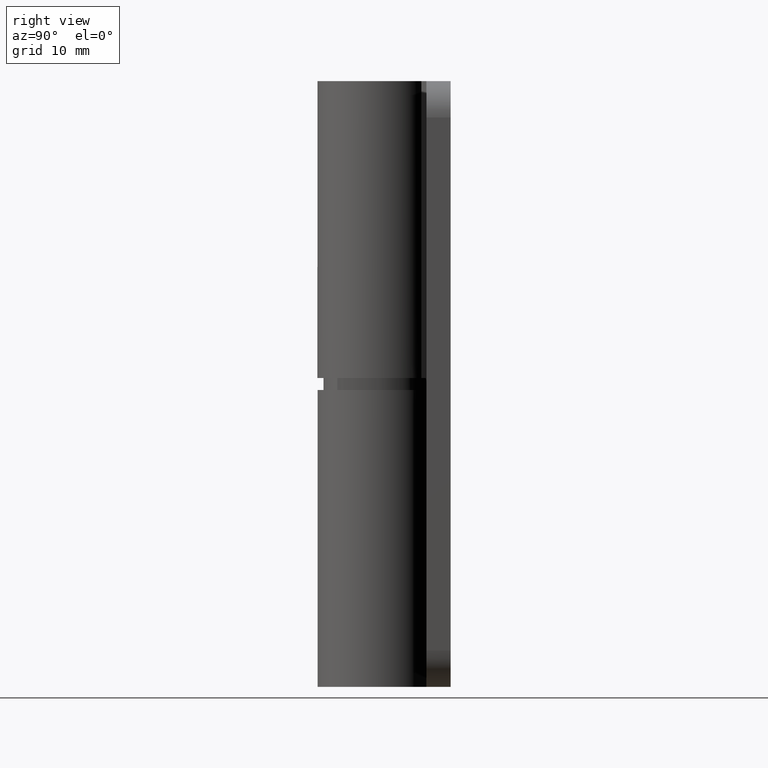
[diagram: clean part render]
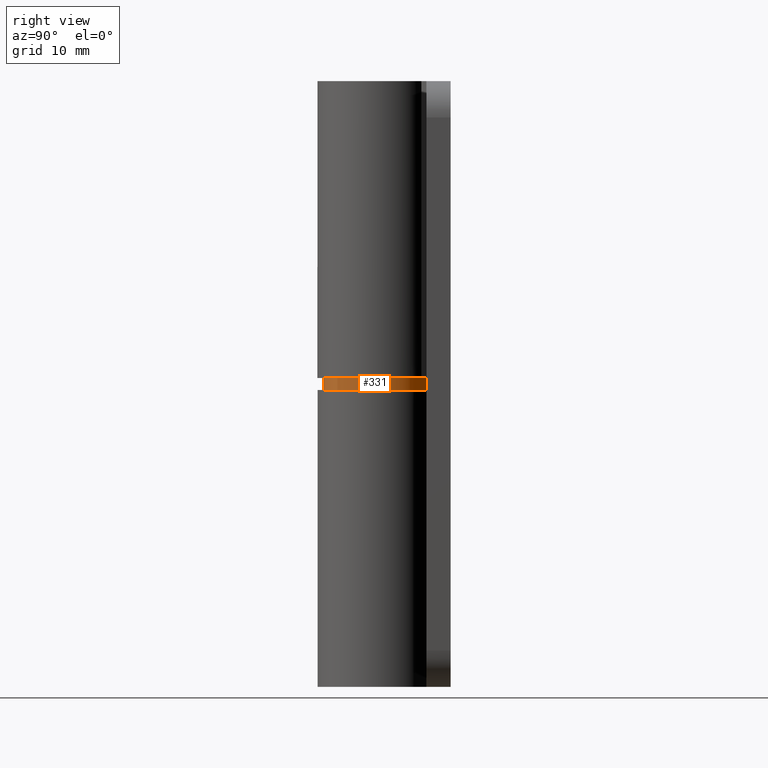
[diagram: same view with one face highlighted and labeled with its STEP entity id]
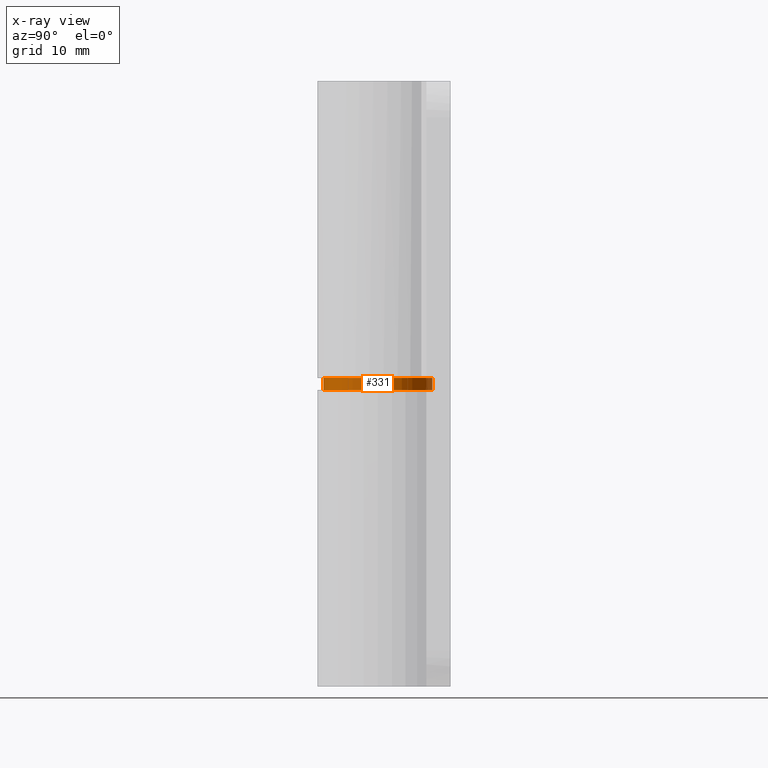
[diagram: x-ray of the same camera — body ghosted, the highlighted face saturated]
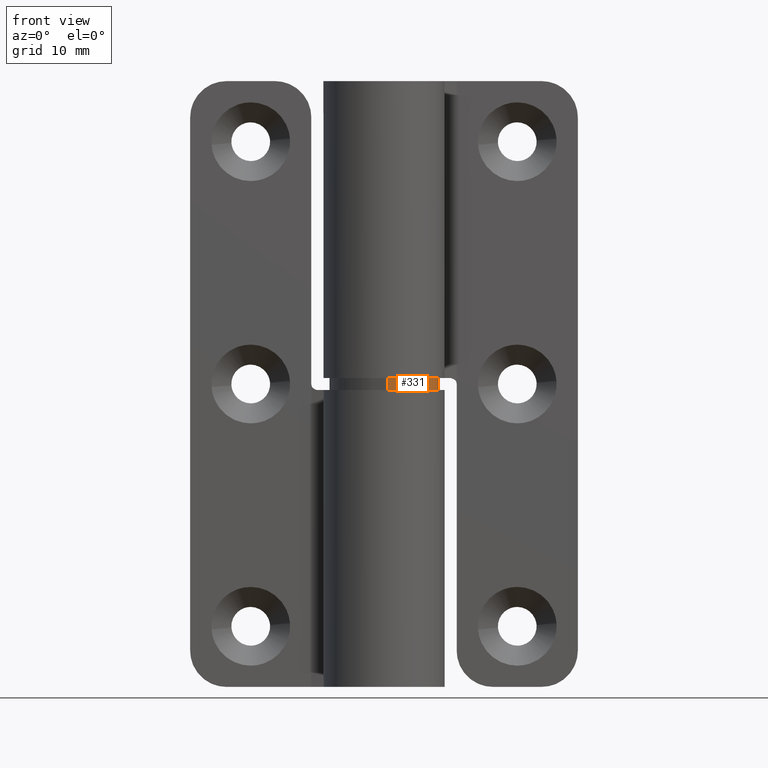
[diagram: same view with one face highlighted and labeled with its STEP entity id]
A machine part, right view. The second image highlights one B-rep face of the part: STEP entity #331.
The next image is the same camera in x-ray: the body ghosted, the highlighted face saturated — about 6% of this face is hidden behind the body in this view.
A second angle (front view) of the same face is appended — the face is thin or edge-on in the first view.
In plain terms, the highlighted face is a freeform B-spline surface patch.
Its self-contained STEP definition (entity closure, byte-faithful):
#10=CARTESIAN_POINT('',(0.274718427955136,-4.491606592895332,25.500000000000000));
#11=VERTEX_POINT('',#10);
#29=CARTESIAN_POINT('',(4.499999999999885,0.0,25.500000000000000));
#30=VERTEX_POINT('',#29);
#31=CARTESIAN_POINT('',(4.499999999999885,0.0,25.500000000000000));
#32=CARTESIAN_POINT('',(4.499999999999885,-4.233177301029926,25.499999999999996));
#33=CARTESIAN_POINT('',(0.274718427955136,-4.491606592895333,25.500000000000000));
#41=(BOUNDED_CURVE()B_SPLINE_CURVE(2,(#31,#32,#33),.UNSPECIFIED.,.F.,.U.)B_SPLINE_CURVE_WITH_KNOTS((3,3),(0.500000000000000,0.739332962240113),.UNSPECIFIED.)CURVE()GEOMETRIC_REPRESENTATION_ITEM()RATIONAL_B_SPLINE_CURVE((1.0,0.719603993285339,0.976072041669226))REPRESENTATION_ITEM(''));
#42=EDGE_CURVE('',#30,#11,#41,.T.);
#44=CARTESIAN_POINT('',(-0.274718427955136,4.491606592895332,25.500000000000000));
#45=VERTEX_POINT('',#44);
#46=CARTESIAN_POINT('',(-0.274718427955136,4.491606592895334,25.500000000000004));
#47=CARTESIAN_POINT('',(-0.137487434867858,4.499999999999885,25.500000000000004));
#48=CARTESIAN_POINT('',(0.0,4.499999999999885,25.500000000000000));
#49=CARTESIAN_POINT('',(4.499999999999885,4.499999999999885,25.499999999999993));
#50=CARTESIAN_POINT('',(4.499999999999885,0.0,25.500000000000000));
#58=(BOUNDED_CURVE()B_SPLINE_CURVE(2,(#46,#47,#48,#49,#50),.UNSPECIFIED.,.F.,.U.)B_SPLINE_CURVE_WITH_KNOTS((3,2,3),(0.239332962240113,0.250000000000000,0.500000000000000),.UNSPECIFIED.)CURVE()GEOMETRIC_REPRESENTATION_ITEM()RATIONAL_B_SPLINE_CURVE((0.976072041669226,0.987502787901209,1.0,0.707106781186548,1.0))REPRESENTATION_ITEM(''));
#59=EDGE_CURVE('',#45,#30,#58,.T.);
#265=CARTESIAN_POINT('',(-0.274718427906849,4.491606592898284,25.524999999999999));
#266=CARTESIAN_POINT('',(4.216888164991436,4.766325020805133,25.525000000000006));
#267=CARTESIAN_POINT('',(4.491606592898284,0.274718427906849,25.524999999999999));
#268=CARTESIAN_POINT('',(4.766325020805133,-4.216888164991436,25.525000000000006));
#269=CARTESIAN_POINT('',(0.274718427906849,-4.491606592898284,25.524999999999999));
#270=CARTESIAN_POINT('',(-0.274718427906849,4.491606592898284,24.474374999999998));
#271=CARTESIAN_POINT('',(4.216888164991436,4.766325020805133,24.474374999999998));
#272=CARTESIAN_POINT('',(4.491606592898284,0.274718427906849,24.474374999999998));
#273=CARTESIAN_POINT('',(4.766325020805133,-4.216888164991436,24.474374999999998));
#274=CARTESIAN_POINT('',(0.274718427906849,-4.491606592898284,24.474374999999998));
#282=(BOUNDED_SURFACE()B_SPLINE_SURFACE(2,1,((#265,#270),(#266,#271),(#267,#272),(#268,#273),(#269,#274)),.UNSPECIFIED.,.F.,.F.,.U.)B_SPLINE_SURFACE_WITH_KNOTS((3,2,3),(2,2),(0.0,7.455844122715518,14.911688245431041),(0.0,1.0),.UNSPECIFIED.)GEOMETRIC_REPRESENTATION_ITEM()RATIONAL_B_SPLINE_SURFACE(((1.0,1.0),(0.707106781186548,0.707106781186548),(1.0,1.0),(0.707106781186548,0.707106781186548),(1.0,1.0)))REPRESENTATION_ITEM('')SURFACE());
#283=ORIENTED_EDGE('',*,*,#59,.T.);
#284=ORIENTED_EDGE('',*,*,#42,.T.);
#285=CARTESIAN_POINT('',(0.274718427955136,-4.491606592895332,24.500000000000000));
#286=VERTEX_POINT('',#285);
#287=CARTESIAN_POINT('',(0.274718427955136,-4.491606592895332,25.500000000000000));
#288=CARTESIAN_POINT('',(0.274718427955136,-4.491606592895332,24.500000000000000));
#289=QUASI_UNIFORM_CURVE('',1,(#287,#288),.UNSPECIFIED.,.F.,.U.);
#290=EDGE_CURVE('',#11,#286,#289,.T.);
#291=ORIENTED_EDGE('',*,*,#290,.T.);
#292=CARTESIAN_POINT('',(4.499999999999885,0.0,24.500000000000000));
#293=VERTEX_POINT('',#292);
#294=CARTESIAN_POINT('',(4.499999999999885,0.0,24.500000000000000));
#295=CARTESIAN_POINT('',(4.499999999999885,-4.233177301029926,24.499999999999993));
#296=CARTESIAN_POINT('',(0.274718427955136,-4.491606592895333,24.499999999999996));
#304=(BOUNDED_CURVE()B_SPLINE_CURVE(2,(#294,#295,#296),.UNSPECIFIED.,.F.,.U.)B_SPLINE_CURVE_WITH_KNOTS((3,3),(0.500000000000000,0.739332962240113),.UNSPECIFIED.)CURVE()GEOMETRIC_REPRESENTATION_ITEM()RATIONAL_B_SPLINE_CURVE((1.0,0.719603993285339,0.976072041669226))REPRESENTATION_ITEM(''));
#305=EDGE_CURVE('',#293,#286,#304,.T.);
#306=ORIENTED_EDGE('',*,*,#305,.F.);
#307=CARTESIAN_POINT('',(-0.274718427955136,4.491606592895332,24.500000000000000));
#308=VERTEX_POINT('',#307);
#309=CARTESIAN_POINT('',(-0.274718427955136,4.491606592895334,24.500000000000000));
#310=CARTESIAN_POINT('',(-0.137487434867858,4.499999999999885,24.500000000000000));
#311=CARTESIAN_POINT('',(0.0,4.499999999999885,24.500000000000000));
#312=CARTESIAN_POINT('',(4.499999999999885,4.499999999999885,24.500000000000004));
#313=CARTESIAN_POINT('',(4.499999999999885,0.0,24.500000000000000));
#321=(BOUNDED_CURVE()B_SPLINE_CURVE(2,(#309,#310,#311,#312,#313),.UNSPECIFIED.,.F.,.U.)B_SPLINE_CURVE_WITH_KNOTS((3,2,3),(0.239332962240113,0.250000000000000,0.500000000000000),.UNSPECIFIED.)CURVE()GEOMETRIC_REPRESENTATION_ITEM()RATIONAL_B_SPLINE_CURVE((0.976072041669226,0.987502787901209,1.0,0.707106781186548,1.0))REPRESENTATION_ITEM(''));
#322=EDGE_CURVE('',#308,#293,#321,.T.);
#323=ORIENTED_EDGE('',*,*,#322,.F.);
#324=CARTESIAN_POINT('',(-0.274718427955136,4.491606592895332,25.500000000000000));
#325=CARTESIAN_POINT('',(-0.274718427955136,4.491606592895332,24.500000000000000));
#326=QUASI_UNIFORM_CURVE('',1,(#324,#325),.UNSPECIFIED.,.F.,.U.);
#327=EDGE_CURVE('',#45,#308,#326,.T.);
#328=ORIENTED_EDGE('',*,*,#327,.F.);
#329=EDGE_LOOP('',(#283,#284,#291,#306,#323,#328));
#330=FACE_OUTER_BOUND('',#329,.T.);
#331=ADVANCED_FACE('',(#330),#282,.T.);